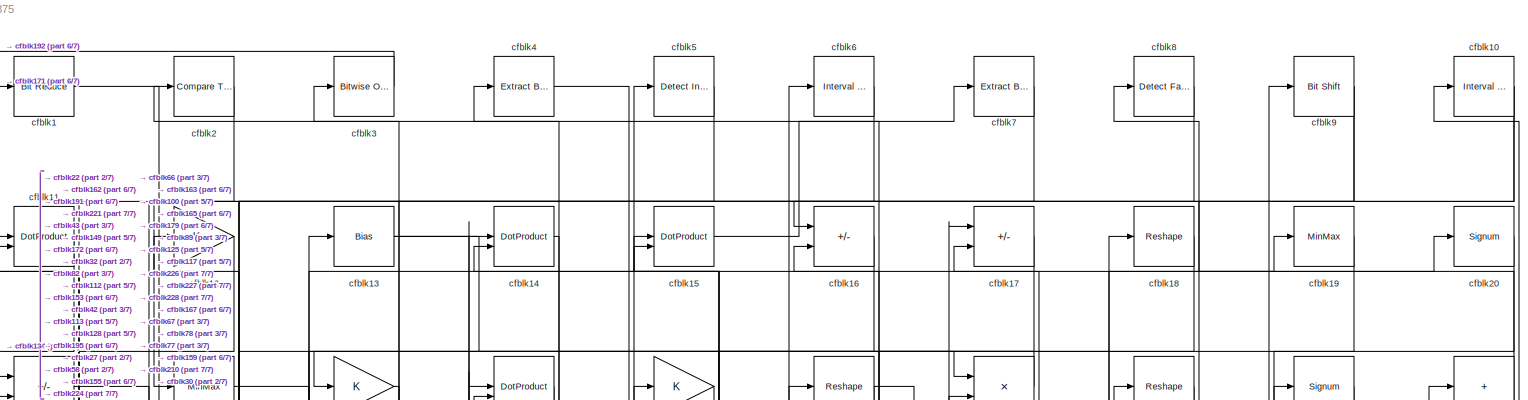
[diagram: root canvas - part 1/7, full width, top band]
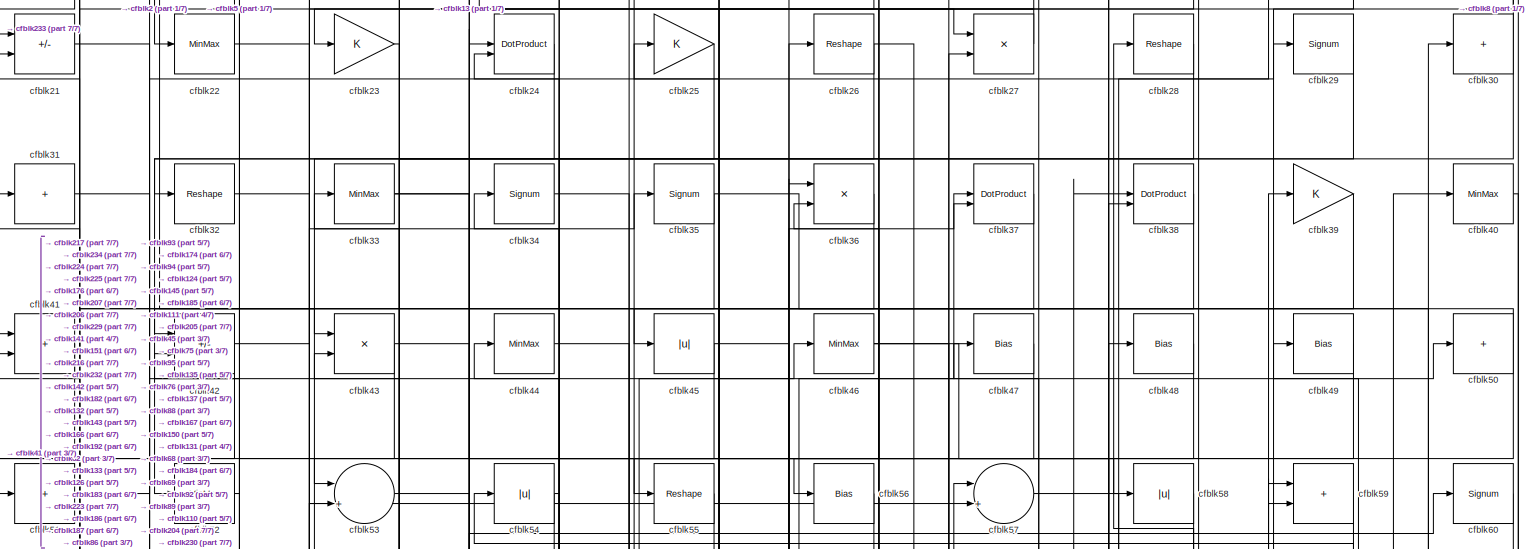
[diagram: root canvas - part 2/7, full width, top band]
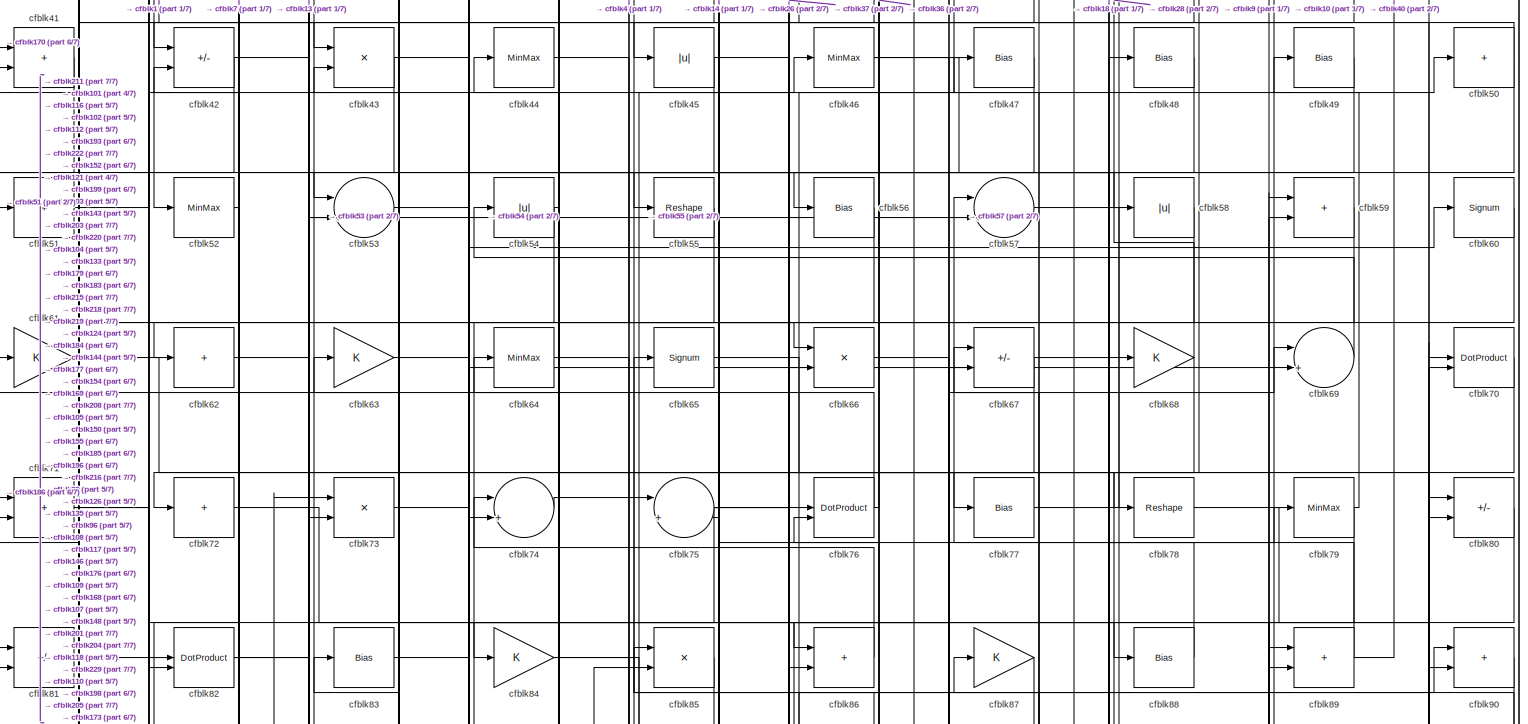
[diagram: root canvas - part 3/7, full width, top band]
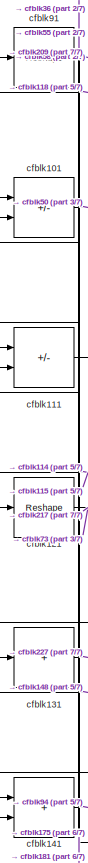
[diagram: root canvas - part 4/7, middle left region]
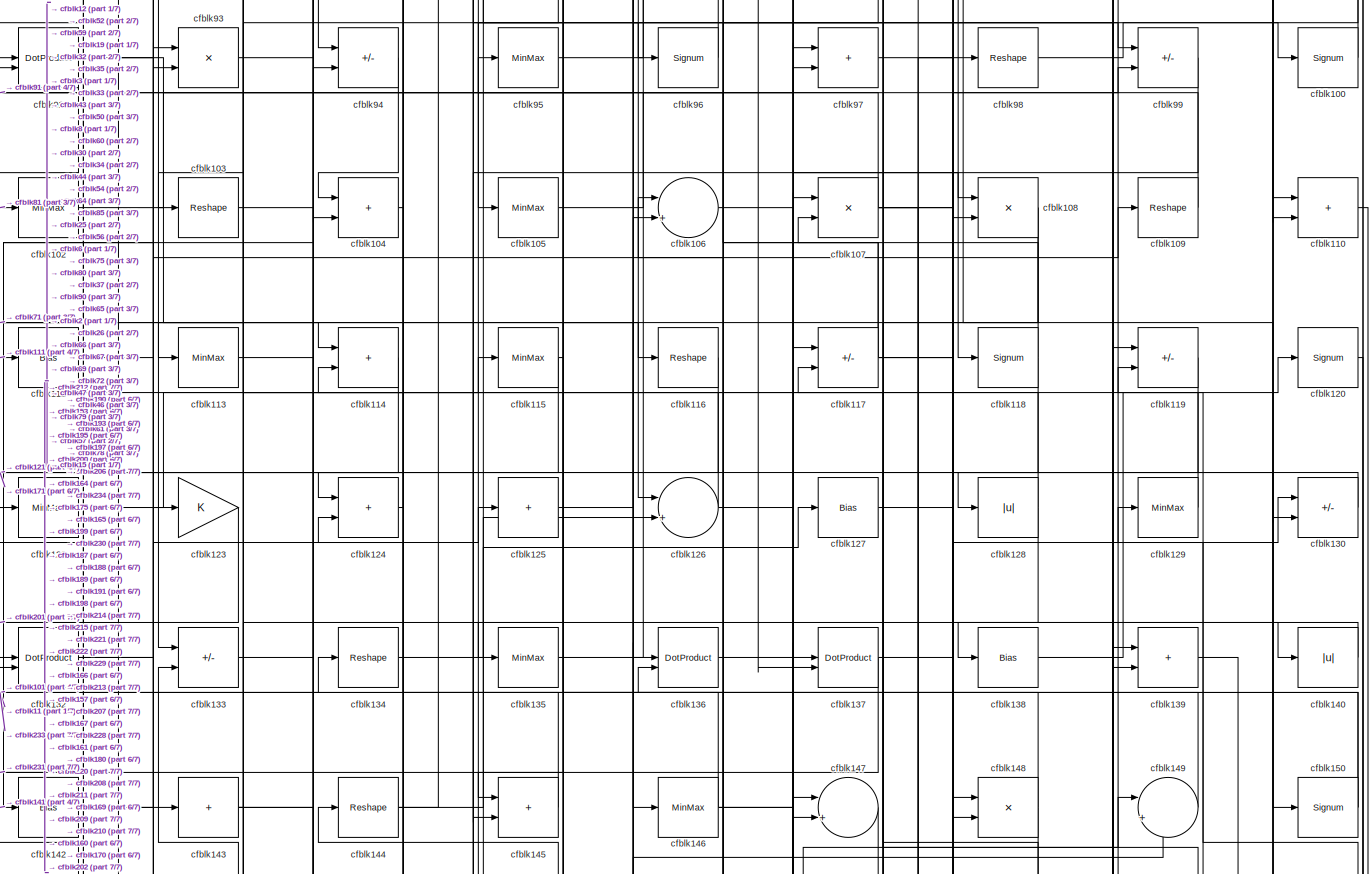
[diagram: root canvas - part 5/7, full width, middle band]
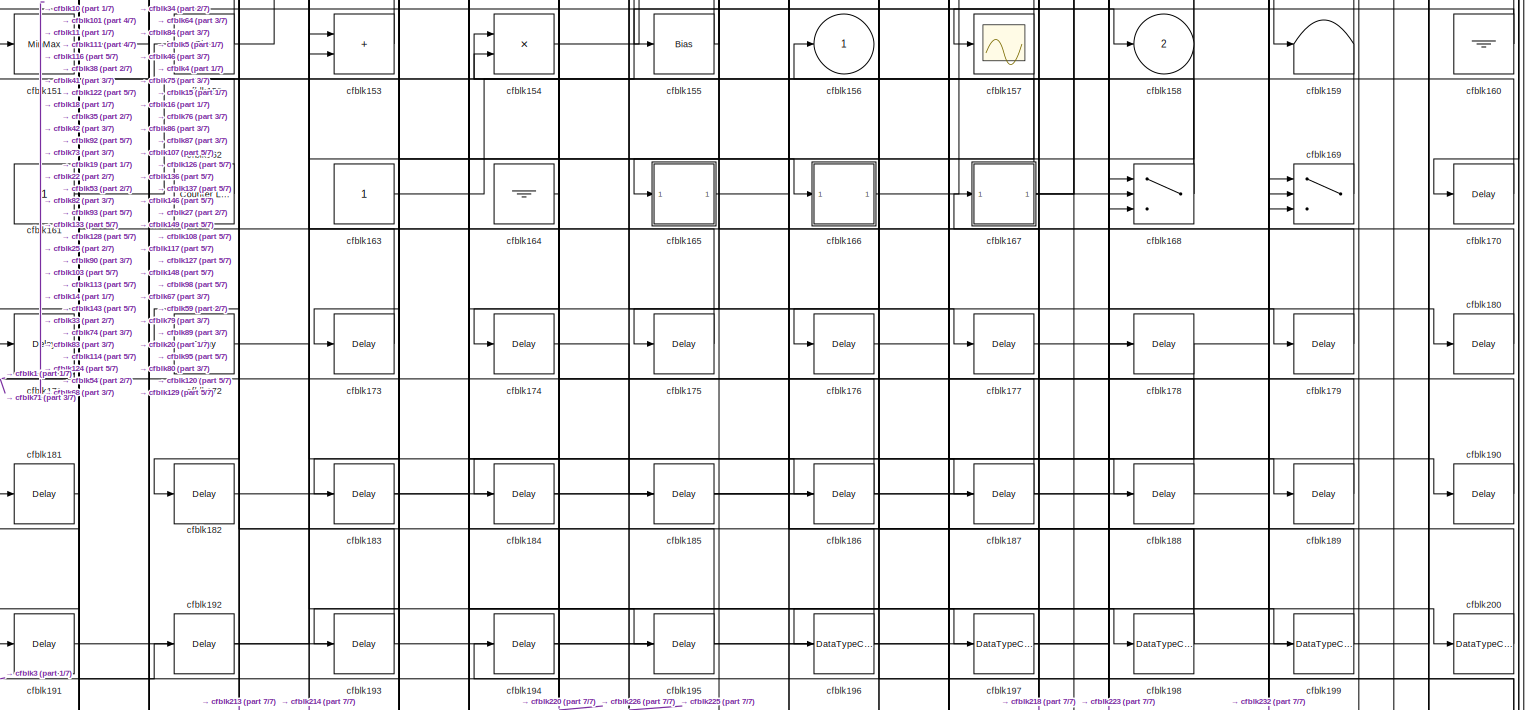
[diagram: root canvas - part 6/7, full width, bottom band]
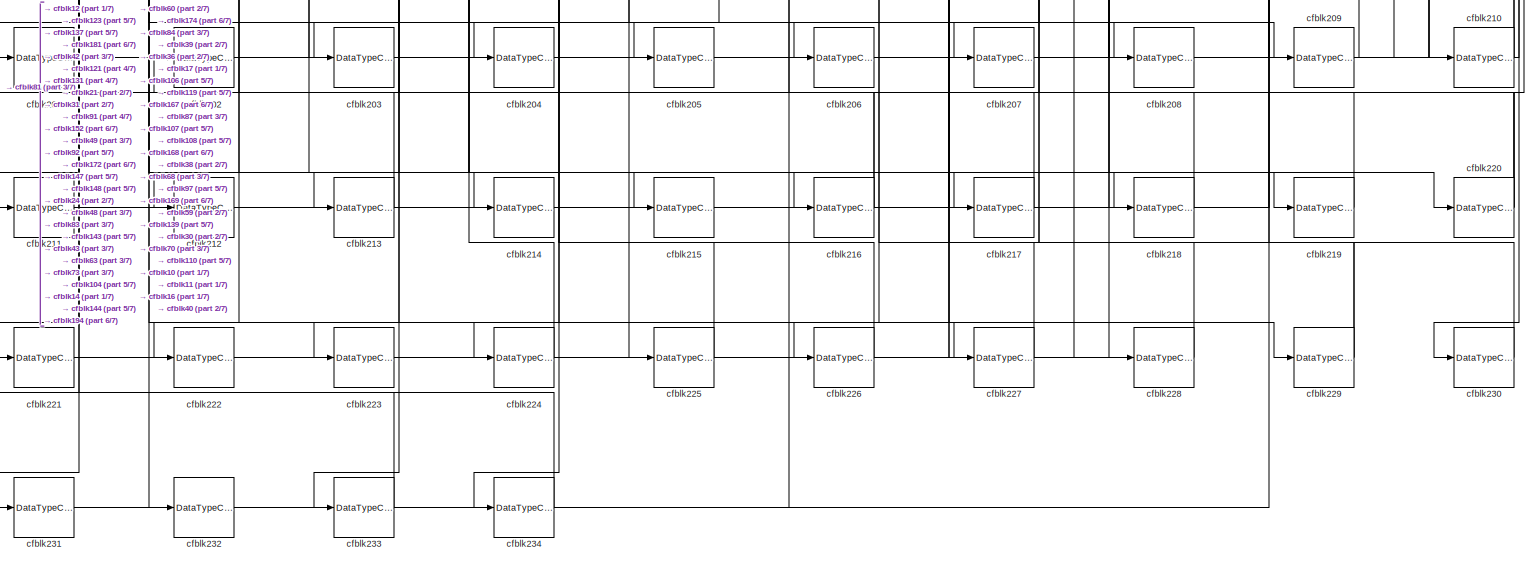
[diagram: root canvas - part 7/7, full width, bottom band]
MODEL slx_3ebe3eef9875
KIND model
CONFIG AbsTol = auto
CONFIG EnableMultiTasking = off
CONFIG FixedStep = auto
CONFIG MaxStep = auto
CONFIG MinStep = auto
CONFIG RelTol = 1e-3
CONFIG SampleTimeConstraint = Unconstrained
CONFIG SolverName = VariableStepAuto
CONFIG StartTime = 0.0
CONFIG StopTime = 10.0
BLOCK [Reference] cfblk1  REF=hdlsllib/Logic and Bit
Operations/Bit Reduce
  SourceBlock = hdlsllib/Logic and Bit\nOperations/Bit Reduce
  SourceType = Bit Reduce
BLOCK [Reference] cfblk10  REF=hdlsllib/Logic and Bit
Operations/Interval Test
  SourceBlock = hdlsllib/Logic and Bit\nOperations/Interval Test
  SourceType = Interval Test
BLOCK [Signum] cfblk100
BLOCK [Sum] cfblk101
  IconShape = rectangular
  Inputs = +-
BLOCK [MinMax] cfblk102
BLOCK [Reshape] cfblk103
BLOCK [Sum] cfblk104
  IconShape = rectangular
BLOCK [MinMax] cfblk105
BLOCK [Sum] cfblk106
  Inputs = |++
BLOCK [Product] cfblk107
  Inputs = */
  RndMeth = Zero
  SaturateOnIntegerOverflow = on
BLOCK [Product] cfblk108
  Inputs = */
  RndMeth = Zero
  SaturateOnIntegerOverflow = on
BLOCK [Reshape] cfblk109
BLOCK [DotProduct] cfblk11
  OutDataTypeStr = Inherit: Inherit via internal rule
BLOCK [Sum] cfblk110
  IconShape = rectangular
BLOCK [Sum] cfblk111
  IconShape = rectangular
  Inputs = +-
BLOCK [Bias] cfblk112
  Bias = 0.0
  SaturateOnIntegerOverflow = off
BLOCK [MinMax] cfblk113
BLOCK [Sum] cfblk114
  IconShape = rectangular
BLOCK [MinMax] cfblk115
BLOCK [Reshape] cfblk116
BLOCK [Sum] cfblk117
  IconShape = rectangular
  Inputs = +-
BLOCK [Signum] cfblk118
BLOCK [Sum] cfblk119
  IconShape = rectangular
  Inputs = +-
BLOCK [Gain] cfblk12
BLOCK [Signum] cfblk120
BLOCK [Reshape] cfblk121
BLOCK [MinMax] cfblk122
BLOCK [Gain] cfblk123
BLOCK [Sum] cfblk124
  IconShape = rectangular
BLOCK [Sum] cfblk125
  IconShape = rectangular
  Inputs = +
BLOCK [Sum] cfblk126
  Inputs = |++
BLOCK [Bias] cfblk127
  Bias = 0.0
  SaturateOnIntegerOverflow = off
BLOCK [Abs] cfblk128
  SaturateOnIntegerOverflow = off
BLOCK [MinMax] cfblk129
BLOCK [Bias] cfblk13
  Bias = 0.0
  SaturateOnIntegerOverflow = off
BLOCK [Sum] cfblk130
  IconShape = rectangular
  Inputs = +-
BLOCK [Sum] cfblk131
  IconShape = rectangular
  Inputs = +
BLOCK [DotProduct] cfblk132
  OutDataTypeStr = Inherit: Inherit via internal rule
BLOCK [Sum] cfblk133
  IconShape = rectangular
  Inputs = +-
BLOCK [Reshape] cfblk134
BLOCK [MinMax] cfblk135
BLOCK [DotProduct] cfblk136
  OutDataTypeStr = Inherit: Inherit via internal rule
BLOCK [DotProduct] cfblk137
  OutDataTypeStr = Inherit: Inherit via internal rule
BLOCK [Bias] cfblk138
  Bias = 0.0
  SaturateOnIntegerOverflow = off
BLOCK [Sum] cfblk139
  IconShape = rectangular
BLOCK [DotProduct] cfblk14
  OutDataTypeStr = Inherit: Inherit via internal rule
BLOCK [Abs] cfblk140
  SaturateOnIntegerOverflow = off
BLOCK [Sum] cfblk141
  IconShape = rectangular
BLOCK [Bias] cfblk142
  Bias = 0.0
  SaturateOnIntegerOverflow = off
BLOCK [Sum] cfblk143
  IconShape = rectangular
  Inputs = +
BLOCK [Reshape] cfblk144
BLOCK [Sum] cfblk145
  IconShape = rectangular
BLOCK [MinMax] cfblk146
BLOCK [Sum] cfblk147
  Inputs = |++
BLOCK [Product] cfblk148
  Inputs = */
  RndMeth = Zero
  SaturateOnIntegerOverflow = on
BLOCK [Sum] cfblk149
  Inputs = |++
BLOCK [DotProduct] cfblk15
  OutDataTypeStr = Inherit: Inherit via internal rule
BLOCK [Signum] cfblk150
BLOCK [MinMax] cfblk151
BLOCK [Bias] cfblk152
  Bias = 0.0
  SaturateOnIntegerOverflow = off
BLOCK [Sum] cfblk153
  IconShape = rectangular
BLOCK [Product] cfblk154
  Inputs = */
  RndMeth = Zero
  SaturateOnIntegerOverflow = on
BLOCK [Bias] cfblk155
  Bias = 0.0
  SaturateOnIntegerOverflow = off
BLOCK [Outport] cfblk156
  VectorParamsAs1DForOutWhenUnconnected = off
BLOCK [Scope] cfblk157
  Floating = off
  NumInputPorts = 1
  ScopeSpecificationString = Simulink.scopes.TimeScopeBlockCfg('CurrentConfiguration', extmgr.ConfigurationSet(extmgr.Configuration('Core','General UI',true),extmgr.Configuration('Core','Source UI',true),extmgr.Configuration('Sources','WiredSimulink',true,'DataLoggingVariableName','ScopeData2','DataLoggingSaveFormat','Array','DataLoggingLimitDataPoints',true,'DataLoggingDecimation','1'),extmgr.Configuration('Visuals','Time Do...<+868ch>
BLOCK [Outport] cfblk158
  Port = 2
  VectorParamsAs1DForOutWhenUnconnected = off
BLOCK [Terminator] cfblk159
BLOCK [Sum] cfblk16
  IconShape = rectangular
  Inputs = +-
BLOCK [Ground] cfblk160
BLOCK [Constant] cfblk161
  SampleTime = -1
BLOCK [Reference] cfblk162  REF=hdlsllib/Sources/Counter
Limited
  SourceBlock = hdlsllib/Sources/Counter\nLimited
  SourceType = Counter Limited
BLOCK [Constant] cfblk163
  SampleTime = -1
BLOCK [Ground] cfblk164
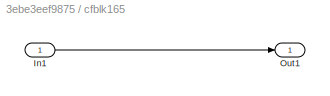
BLOCK [SubSystem] cfblk165
  LibrarySourceBlock = hdlsllib/Ports &\nSubsystems/Subsystem
BLOCK [Inport] cfblk165/In1
BLOCK [Outport] cfblk165/Out1
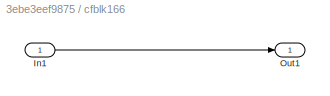
BLOCK [SubSystem] cfblk166
  LibrarySourceBlock = hdlsllib/Ports &\nSubsystems/Subsystem
BLOCK [Inport] cfblk166/In1
BLOCK [Outport] cfblk166/Out1
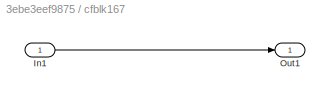
BLOCK [SubSystem] cfblk167
  LibrarySourceBlock = hdlsllib/Ports &\nSubsystems/Subsystem
BLOCK [Inport] cfblk167/In1
BLOCK [Outport] cfblk167/Out1
BLOCK [Switch] cfblk168
  InputSameDT = off
  SaturateOnIntegerOverflow = off
BLOCK [Switch] cfblk169
  InputSameDT = off
  SaturateOnIntegerOverflow = off
BLOCK [Sum] cfblk17
  IconShape = rectangular
  Inputs = +-
BLOCK [Delay] cfblk170
  InputPortMap = u0
  SampleTime = 1
BLOCK [Delay] cfblk171
  InputPortMap = u0
  SampleTime = 1
BLOCK [Delay] cfblk172
  InputPortMap = u0
  SampleTime = 1
BLOCK [Delay] cfblk173
  InputPortMap = u0
  SampleTime = 1
BLOCK [Delay] cfblk174
  InputPortMap = u0
  SampleTime = 1
BLOCK [Delay] cfblk175
  InputPortMap = u0
  SampleTime = 1
BLOCK [Delay] cfblk176
  InputPortMap = u0
  SampleTime = 1
BLOCK [Delay] cfblk177
  InputPortMap = u0
  SampleTime = 1
BLOCK [Delay] cfblk178
  InputPortMap = u0
  SampleTime = 1
BLOCK [Delay] cfblk179
  InputPortMap = u0
  SampleTime = 1
BLOCK [Reshape] cfblk18
BLOCK [Delay] cfblk180
  InputPortMap = u0
  SampleTime = 1
BLOCK [Delay] cfblk181
  InputPortMap = u0
  SampleTime = 1
BLOCK [Delay] cfblk182
  InputPortMap = u0
  SampleTime = 1
BLOCK [Delay] cfblk183
  InputPortMap = u0
  SampleTime = 1
BLOCK [Delay] cfblk184
  InputPortMap = u0
  SampleTime = 1
BLOCK [Delay] cfblk185
  InputPortMap = u0
  SampleTime = 1
BLOCK [Delay] cfblk186
  InputPortMap = u0
  SampleTime = 1
BLOCK [Delay] cfblk187
  InputPortMap = u0
  SampleTime = 1
BLOCK [Delay] cfblk188
  InputPortMap = u0
  SampleTime = 1
BLOCK [Delay] cfblk189
  InputPortMap = u0
  SampleTime = 1
BLOCK [MinMax] cfblk19
BLOCK [Delay] cfblk190
  InputPortMap = u0
  SampleTime = 1
BLOCK [Delay] cfblk191
  InputPortMap = u0
  SampleTime = 1
BLOCK [Delay] cfblk192
  InputPortMap = u0
  SampleTime = 1
BLOCK [Delay] cfblk193
  InputPortMap = u0
  SampleTime = 1
BLOCK [Delay] cfblk194
  InputPortMap = u0
  SampleTime = 1
BLOCK [Delay] cfblk195
  InputPortMap = u0
  SampleTime = 1
BLOCK [DataTypeConversion] cfblk196
  OutDataTypeStr = uint8
  RndMeth = Floor
  SaturateOnIntegerOverflow = off
BLOCK [DataTypeConversion] cfblk197
  OutDataTypeStr = uint8
  RndMeth = Floor
  SaturateOnIntegerOverflow = off
BLOCK [DataTypeConversion] cfblk198
  RndMeth = Floor
  SaturateOnIntegerOverflow = off
BLOCK [DataTypeConversion] cfblk199
  OutDataTypeStr = uint8
  RndMeth = Floor
  SaturateOnIntegerOverflow = off
BLOCK [Reference] cfblk2  REF=hdlsllib/Logic and Bit
Operations/Compare
To Zero
  SourceBlock = hdlsllib/Logic and Bit\nOperations/Compare\nTo Zero
  SourceType = Compare To Zero
BLOCK [Signum] cfblk20
BLOCK [DataTypeConversion] cfblk200
  OutDataTypeStr = uint8
  RndMeth = Floor
  SaturateOnIntegerOverflow = off
BLOCK [DataTypeConversion] cfblk201
  OutDataTypeStr = uint8
  RndMeth = Floor
  SaturateOnIntegerOverflow = off
BLOCK [DataTypeConversion] cfblk202
  OutDataTypeStr = uint8
  RndMeth = Floor
  SaturateOnIntegerOverflow = off
BLOCK [DataTypeConversion] cfblk203
  OutDataTypeStr = uint8
  RndMeth = Floor
  SaturateOnIntegerOverflow = off
BLOCK [DataTypeConversion] cfblk204
  OutDataTypeStr = uint8
  RndMeth = Floor
  SaturateOnIntegerOverflow = off
BLOCK [DataTypeConversion] cfblk205
  OutDataTypeStr = uint8
  RndMeth = Floor
  SaturateOnIntegerOverflow = off
BLOCK [DataTypeConversion] cfblk206
  OutDataTypeStr = uint8
  RndMeth = Floor
  SaturateOnIntegerOverflow = off
BLOCK [DataTypeConversion] cfblk207
  RndMeth = Floor
  SaturateOnIntegerOverflow = off
BLOCK [DataTypeConversion] cfblk208
  OutDataTypeStr = uint8
  RndMeth = Floor
  SaturateOnIntegerOverflow = off
BLOCK [DataTypeConversion] cfblk209
  OutDataTypeStr = uint8
  RndMeth = Floor
  SaturateOnIntegerOverflow = off
BLOCK [Sum] cfblk21
  IconShape = rectangular
  Inputs = +-
BLOCK [DataTypeConversion] cfblk210
  RndMeth = Floor
  SaturateOnIntegerOverflow = off
BLOCK [DataTypeConversion] cfblk211
  OutDataTypeStr = uint8
  RndMeth = Floor
  SaturateOnIntegerOverflow = off
BLOCK [DataTypeConversion] cfblk212
  OutDataTypeStr = uint8
  RndMeth = Floor
  SaturateOnIntegerOverflow = off
BLOCK [DataTypeConversion] cfblk213
  RndMeth = Floor
  SaturateOnIntegerOverflow = off
BLOCK [DataTypeConversion] cfblk214
  OutDataTypeStr = uint8
  RndMeth = Floor
  SaturateOnIntegerOverflow = off
BLOCK [DataTypeConversion] cfblk215
  OutDataTypeStr = uint8
  RndMeth = Floor
  SaturateOnIntegerOverflow = off
BLOCK [DataTypeConversion] cfblk216
  RndMeth = Floor
  SaturateOnIntegerOverflow = off
BLOCK [DataTypeConversion] cfblk217
  OutDataTypeStr = uint8
  RndMeth = Floor
  SaturateOnIntegerOverflow = off
BLOCK [DataTypeConversion] cfblk218
  OutDataTypeStr = uint8
  RndMeth = Floor
  SaturateOnIntegerOverflow = off
BLOCK [DataTypeConversion] cfblk219
  OutDataTypeStr = uint8
  RndMeth = Floor
  SaturateOnIntegerOverflow = off
BLOCK [MinMax] cfblk22
BLOCK [DataTypeConversion] cfblk220
  RndMeth = Floor
  SaturateOnIntegerOverflow = off
BLOCK [DataTypeConversion] cfblk221
  OutDataTypeStr = uint8
  RndMeth = Floor
  SaturateOnIntegerOverflow = off
BLOCK [DataTypeConversion] cfblk222
  OutDataTypeStr = uint8
  RndMeth = Floor
  SaturateOnIntegerOverflow = off
BLOCK [DataTypeConversion] cfblk223
  OutDataTypeStr = uint8
  RndMeth = Floor
  SaturateOnIntegerOverflow = off
BLOCK [DataTypeConversion] cfblk224
  OutDataTypeStr = uint8
  RndMeth = Floor
  SaturateOnIntegerOverflow = off
BLOCK [DataTypeConversion] cfblk225
  OutDataTypeStr = uint8
  RndMeth = Floor
  SaturateOnIntegerOverflow = off
BLOCK [DataTypeConversion] cfblk226
  OutDataTypeStr = uint8
  RndMeth = Floor
  SaturateOnIntegerOverflow = off
BLOCK [DataTypeConversion] cfblk227
  OutDataTypeStr = uint8
  RndMeth = Floor
  SaturateOnIntegerOverflow = off
BLOCK [DataTypeConversion] cfblk228
  OutDataTypeStr = uint8
  RndMeth = Floor
  SaturateOnIntegerOverflow = off
BLOCK [DataTypeConversion] cfblk229
  RndMeth = Floor
  SaturateOnIntegerOverflow = off
BLOCK [Gain] cfblk23
BLOCK [DataTypeConversion] cfblk230
  OutDataTypeStr = uint8
  RndMeth = Floor
  SaturateOnIntegerOverflow = off
BLOCK [DataTypeConversion] cfblk231
  OutDataTypeStr = uint8
  RndMeth = Floor
  SaturateOnIntegerOverflow = off
BLOCK [DataTypeConversion] cfblk232
  OutDataTypeStr = uint8
  RndMeth = Floor
  SaturateOnIntegerOverflow = off
BLOCK [DataTypeConversion] cfblk233
  OutDataTypeStr = uint8
  RndMeth = Floor
  SaturateOnIntegerOverflow = off
BLOCK [DataTypeConversion] cfblk234
  OutDataTypeStr = uint8
  RndMeth = Floor
  SaturateOnIntegerOverflow = off
BLOCK [DotProduct] cfblk24
  OutDataTypeStr = Inherit: Inherit via internal rule
BLOCK [Gain] cfblk25
BLOCK [Reshape] cfblk26
BLOCK [Product] cfblk27
  Inputs = */
  RndMeth = Zero
  SaturateOnIntegerOverflow = on
BLOCK [Reshape] cfblk28
BLOCK [Signum] cfblk29
BLOCK [Reference] cfblk3  REF=simulink/Logic and Bit
Operations/Bitwise
Operator
  LibrarySourceBlock = hdlsllib/Logic and Bit\nOperations/Bitwise\nOperator
  SourceBlock = simulink/Logic and Bit\nOperations/Bitwise\nOperator
  SourceType = Bitwise Operator
BLOCK [Sum] cfblk30
  IconShape = rectangular
  Inputs = +
BLOCK [Sum] cfblk31
  IconShape = rectangular
  Inputs = +
BLOCK [Reshape] cfblk32
BLOCK [MinMax] cfblk33
BLOCK [Signum] cfblk34
BLOCK [Signum] cfblk35
BLOCK [Product] cfblk36
  Inputs = */
  RndMeth = Zero
  SaturateOnIntegerOverflow = on
BLOCK [DotProduct] cfblk37
  OutDataTypeStr = Inherit: Inherit via internal rule
BLOCK [DotProduct] cfblk38
  OutDataTypeStr = Inherit: Inherit via internal rule
BLOCK [Gain] cfblk39
BLOCK [Reference] cfblk4  REF=simulink/Logic and Bit
Operations/Extract Bits
  LibrarySourceBlock = hdlsllib/Logic and Bit\nOperations/Extract Bits
  SourceBlock = simulink/Logic and Bit\nOperations/Extract Bits
  SourceType = Extract Bits
BLOCK [MinMax] cfblk40
BLOCK [Sum] cfblk41
  IconShape = rectangular
BLOCK [Sum] cfblk42
  IconShape = rectangular
  Inputs = +-
BLOCK [Product] cfblk43
  Inputs = */
  RndMeth = Zero
  SaturateOnIntegerOverflow = on
BLOCK [MinMax] cfblk44
BLOCK [Abs] cfblk45
  SaturateOnIntegerOverflow = off
BLOCK [MinMax] cfblk46
BLOCK [Bias] cfblk47
  Bias = 0.0
  SaturateOnIntegerOverflow = off
BLOCK [Bias] cfblk48
  Bias = 0.0
  SaturateOnIntegerOverflow = off
BLOCK [Bias] cfblk49
  Bias = 0.0
  SaturateOnIntegerOverflow = off
BLOCK [Reference] cfblk5  REF=simulink/Logic and Bit
Operations/Detect
Increase
  LibrarySourceBlock = hdlsllib/Logic and Bit\nOperations/Detect\nIncrease
  SourceBlock = simulink/Logic and Bit\nOperations/Detect\nIncrease
  SourceType = Detect Increase
BLOCK [Sum] cfblk50
  IconShape = rectangular
  Inputs = +
BLOCK [Sum] cfblk51
  IconShape = rectangular
  Inputs = +
BLOCK [MinMax] cfblk52
BLOCK [Sum] cfblk53
  Inputs = |++
BLOCK [Abs] cfblk54
  SaturateOnIntegerOverflow = off
BLOCK [Reshape] cfblk55
BLOCK [Bias] cfblk56
  Bias = 0.0
  SaturateOnIntegerOverflow = off
BLOCK [Sum] cfblk57
  Inputs = |++
BLOCK [Abs] cfblk58
  SaturateOnIntegerOverflow = off
BLOCK [Sum] cfblk59
  IconShape = rectangular
BLOCK [Reference] cfblk6  REF=hdlsllib/Logic and Bit
Operations/Interval Test
  SourceBlock = hdlsllib/Logic and Bit\nOperations/Interval Test
  SourceType = Interval Test
BLOCK [Signum] cfblk60
BLOCK [Gain] cfblk61
BLOCK [Sum] cfblk62
  IconShape = rectangular
  Inputs = +
BLOCK [Gain] cfblk63
BLOCK [MinMax] cfblk64
BLOCK [Signum] cfblk65
BLOCK [Product] cfblk66
  Inputs = */
  RndMeth = Zero
  SaturateOnIntegerOverflow = on
BLOCK [Sum] cfblk67
  IconShape = rectangular
  Inputs = +-
BLOCK [Gain] cfblk68
BLOCK [Sum] cfblk69
  Inputs = |++
BLOCK [Reference] cfblk7  REF=simulink/Logic and Bit
Operations/Extract Bits
  LibrarySourceBlock = hdlsllib/Logic and Bit\nOperations/Extract Bits
  SourceBlock = simulink/Logic and Bit\nOperations/Extract Bits
  SourceType = Extract Bits
BLOCK [DotProduct] cfblk70
  OutDataTypeStr = Inherit: Inherit via internal rule
BLOCK [Sum] cfblk71
  IconShape = rectangular
BLOCK [Sum] cfblk72
  IconShape = rectangular
  Inputs = +
BLOCK [Product] cfblk73
  Inputs = */
  RndMeth = Zero
  SaturateOnIntegerOverflow = on
BLOCK [Sum] cfblk74
  Inputs = |++
BLOCK [Sum] cfblk75
  Inputs = |++
BLOCK [DotProduct] cfblk76
  OutDataTypeStr = Inherit: Inherit via internal rule
BLOCK [Bias] cfblk77
  Bias = 0.0
  SaturateOnIntegerOverflow = off
BLOCK [Reshape] cfblk78
BLOCK [MinMax] cfblk79
BLOCK [Reference] cfblk8  REF=hdlsllib/Logic and Bit
Operations/Detect Fall
Negative
  SourceBlock = hdlsllib/Logic and Bit\nOperations/Detect Fall\nNegative
  SourceType = Detect Fall Negative
BLOCK [Sum] cfblk80
  IconShape = rectangular
  Inputs = +-
BLOCK [Sum] cfblk81
  IconShape = rectangular
  Inputs = +-
BLOCK [DotProduct] cfblk82
  OutDataTypeStr = Inherit: Inherit via internal rule
BLOCK [Bias] cfblk83
  Bias = 0.0
  SaturateOnIntegerOverflow = off
BLOCK [Gain] cfblk84
BLOCK [Product] cfblk85
  Inputs = */
  RndMeth = Zero
  SaturateOnIntegerOverflow = on
BLOCK [Sum] cfblk86
  IconShape = rectangular
BLOCK [Gain] cfblk87
BLOCK [Bias] cfblk88
  Bias = 0.0
  SaturateOnIntegerOverflow = off
BLOCK [Sum] cfblk89
  IconShape = rectangular
BLOCK [Reference] cfblk9  REF=hdlsllib/Logic and Bit
Operations/Bit Shift
  SourceBlock = hdlsllib/Logic and Bit\nOperations/Bit Shift
  SourceType = Bit Shift
BLOCK [Sum] cfblk90
  IconShape = rectangular
BLOCK [Reshape] cfblk91
BLOCK [DotProduct] cfblk92
  OutDataTypeStr = Inherit: Inherit via internal rule
BLOCK [Product] cfblk93
  Inputs = */
  RndMeth = Zero
  SaturateOnIntegerOverflow = on
BLOCK [Sum] cfblk94
  IconShape = rectangular
  Inputs = +-
BLOCK [MinMax] cfblk95
BLOCK [Signum] cfblk96
BLOCK [Sum] cfblk97
  IconShape = rectangular
BLOCK [Reshape] cfblk98
BLOCK [Sum] cfblk99
  IconShape = rectangular
  Inputs = +-
LINE cfblk100:1 -> cfblk15:1
LINE cfblk101:1 -> cfblk50:1
LINE cfblk102:1 -> cfblk66:2
LINE cfblk103:1 -> cfblk195:1
LINE cfblk104:1 -> cfblk234:1
LINE cfblk105:1 -> cfblk67:2
LINE cfblk106:1 -> cfblk229:1
NET cfblk107:1 -> cfblk130:2, cfblk228:1, cfblk71:2, cfblk79:1
NET cfblk108:1 -> cfblk157:1, cfblk175:1
LINE cfblk109:1 -> cfblk47:1
NET cfblk10:1 -> cfblk191:1, cfblk78:1
LINE cfblk110:1 -> cfblk202:1
LINE cfblk111:1 -> cfblk114:1
LINE cfblk112:1 -> cfblk19:1
LINE cfblk113:1 -> cfblk197:1
LINE cfblk114:1 -> cfblk121:1
NET cfblk115:1 -> cfblk141:2, cfblk145:1
LINE cfblk116:1 -> cfblk171:1
NET cfblk117:1 -> cfblk107:2, cfblk140:1, cfblk2:1, cfblk99:2
NET cfblk118:1 -> cfblk132:1, cfblk91:1
LINE cfblk119:1 -> cfblk207:1
LINE cfblk11:1 -> cfblk134:1
LINE cfblk120:1 -> cfblk170:1
NET cfblk121:1 -> cfblk217:1, cfblk73:2
LINE cfblk122:1 -> cfblk115:1
LINE cfblk123:1 -> cfblk201:1
LINE cfblk124:1 -> cfblk64:1
LINE cfblk125:1 -> cfblk6:1
NET cfblk126:1 -> cfblk188:1, cfblk33:1
LINE cfblk127:1 -> cfblk180:1
NET cfblk128:1 -> cfblk193:1, cfblk3:1
LINE cfblk129:1 -> cfblk92:2
LINE cfblk12:1 -> cfblk221:1
LINE cfblk130:1 -> cfblk128:1
LINE cfblk131:1 -> cfblk227:1
NET cfblk132:1 -> cfblk125:1, cfblk35:1
LINE cfblk133:1 -> cfblk69:2
LINE cfblk134:1 -> cfblk126:2
LINE cfblk135:1 -> cfblk90:1
LINE cfblk136:1 -> cfblk198:1
NET cfblk137:1 -> cfblk130:1, cfblk231:1
LINE cfblk138:1 -> cfblk120:1
LINE cfblk139:1 -> cfblk210:1
NET cfblk13:1 -> cfblk27:1, cfblk58:1
LINE cfblk140:1 -> cfblk138:1
LINE cfblk141:1 -> cfblk94:2
NET cfblk142:1 -> cfblk109:1, cfblk93:2
NET cfblk143:1 -> cfblk200:1, cfblk206:1, cfblk43:2
NET cfblk144:1 -> cfblk127:1, cfblk85:2
LINE cfblk145:1 -> cfblk34:1
NET cfblk146:1 -> cfblk189:1, cfblk44:1, cfblk69:1
LINE cfblk147:1 -> cfblk213:1
NET cfblk148:1 -> cfblk101:1, cfblk233:1
LINE cfblk149:1 -> cfblk12:1
LINE cfblk14:1 -> cfblk224:1
NET cfblk150:1 -> cfblk25:1, cfblk85:1
LINE cfblk151:1 -> cfblk158:1
NET cfblk152:1 -> cfblk41:2, cfblk73:1
LINE cfblk153:1 -> cfblk133:2
LINE cfblk154:1 -> cfblk46:1
NET cfblk155:1 -> cfblk4:1, cfblk75:2
LINE cfblk15:1 -> cfblk7:1
NET cfblk160:1 -> cfblk129:1, cfblk155:1
LINE cfblk161:1 -> cfblk148:1
LINE cfblk162:1 -> cfblk11:1
LINE cfblk163:1 -> cfblk5:1
LINE cfblk164:1 -> cfblk124:2
LINE cfblk165/In1:1 -> cfblk165/Out1:1
LINE cfblk165:1 -> cfblk149:2
LINE cfblk166/In1:1 -> cfblk166/Out1:1
LINE cfblk166:1 -> cfblk149:1
LINE cfblk167/In1:1 -> cfblk167/Out1:1
NET cfblk167:1 -> cfblk156:1, cfblk20:1, cfblk38:1, cfblk98:1
NET cfblk168:1 -> cfblk154:1, cfblk67:1
LINE cfblk169:1 -> cfblk95:1
LINE cfblk16:1 -> cfblk165:1
LINE cfblk170:1 -> cfblk41:1
LINE cfblk171:1 -> cfblk1:1
LINE cfblk172:1 -> cfblk214:1
LINE cfblk173:1 -> cfblk153:1
LINE cfblk174:1 -> cfblk225:1
LINE cfblk175:1 -> cfblk111:2
LINE cfblk176:1 -> cfblk27:2
LINE cfblk177:1 -> cfblk89:1
LINE cfblk178:1 -> cfblk196:1
LINE cfblk179:1 -> cfblk15:2
LINE cfblk17:1 -> cfblk226:1
LINE cfblk180:1 -> cfblk93:1
LINE cfblk181:1 -> cfblk101:2
LINE cfblk182:1 -> cfblk168:2
LINE cfblk183:1 -> cfblk74:2
LINE cfblk184:1 -> cfblk59:2
LINE cfblk185:1 -> cfblk86:2
LINE cfblk186:1 -> cfblk71:1
LINE cfblk187:1 -> cfblk137:1
LINE cfblk188:1 -> cfblk154:2
LINE cfblk189:1 -> cfblk117:2
LINE cfblk18:1 -> cfblk172:1
LINE cfblk190:1 -> cfblk114:2
LINE cfblk191:1 -> cfblk107:1
LINE cfblk192:1 -> cfblk53:2
LINE cfblk193:1 -> cfblk42:2
LINE cfblk194:1 -> cfblk168:1
LINE cfblk195:1 -> cfblk14:1
LINE cfblk196:1 -> cfblk76:1
LINE cfblk197:1 -> cfblk178:1
NET cfblk198:1 -> cfblk122:1, cfblk76:2, cfblk80:1
LINE cfblk199:1 -> cfblk136:1
LINE cfblk19:1 -> cfblk153:2
LINE cfblk1:1 -> cfblk43:1
LINE cfblk200:1 -> cfblk136:2
LINE cfblk201:1 -> cfblk68:1
LINE cfblk202:1 -> cfblk123:1
LINE cfblk203:1 -> cfblk70:2
LINE cfblk204:1 -> cfblk48:1
LINE cfblk205:1 -> cfblk70:1
LINE cfblk206:1 -> cfblk39:1
NET cfblk207:1 -> cfblk30:1, cfblk38:2
LINE cfblk208:1 -> cfblk119:1
LINE cfblk209:1 -> cfblk119:2
LINE cfblk20:1 -> cfblk159:1
NET cfblk210:1 -> cfblk10:1, cfblk11:2, cfblk16:2
LINE cfblk211:1 -> cfblk139:1
LINE cfblk212:1 -> cfblk139:2
NET cfblk213:1 -> cfblk108:2, cfblk152:1
LINE cfblk214:1 -> cfblk147:1
LINE cfblk215:1 -> cfblk147:2
NET cfblk216:1 -> cfblk36:1, cfblk81:1
LINE cfblk217:1 -> cfblk31:1
LINE cfblk218:1 -> cfblk167:1
LINE cfblk219:1 -> cfblk63:1
LINE cfblk21:1 -> cfblk232:1
NET cfblk220:1 -> cfblk144:1, cfblk181:1, cfblk83:1
LINE cfblk221:1 -> cfblk97:1
LINE cfblk222:1 -> cfblk97:2
LINE cfblk223:1 -> cfblk168:3
LINE cfblk224:1 -> cfblk24:1
LINE cfblk225:1 -> cfblk24:2
LINE cfblk226:1 -> cfblk194:1
LINE cfblk227:1 -> cfblk17:1
LINE cfblk228:1 -> cfblk17:2
NET cfblk229:1 -> cfblk59:1, cfblk87:1
LINE cfblk22:1 -> cfblk166:1
LINE cfblk230:1 -> cfblk106:1
LINE cfblk231:1 -> cfblk106:2
LINE cfblk232:1 -> cfblk169:1
LINE cfblk233:1 -> cfblk21:1
LINE cfblk234:1 -> cfblk21:2
LINE cfblk23:1 -> cfblk53:1
LINE cfblk24:1 -> cfblk223:1
LINE cfblk25:1 -> cfblk183:1
NET cfblk26:1 -> cfblk133:1, cfblk137:2
LINE cfblk27:1 -> cfblk23:1
LINE cfblk28:1 -> cfblk62:1
LINE cfblk29:1 -> cfblk52:1
LINE cfblk2:1 -> cfblk22:1
NET cfblk30:1 -> cfblk124:1, cfblk8:1
LINE cfblk31:1 -> cfblk216:1
LINE cfblk32:1 -> cfblk143:1
NET cfblk33:1 -> cfblk186:1, cfblk187:1
LINE cfblk34:1 -> cfblk185:1
NET cfblk35:1 -> cfblk110:2, cfblk182:1
LINE cfblk36:1 -> cfblk141:1
LINE cfblk37:1 -> cfblk56:1
LINE cfblk38:1 -> cfblk151:1
LINE cfblk39:1 -> cfblk205:1
LINE cfblk3:1 -> cfblk192:1
LINE cfblk40:1 -> cfblk230:1
LINE cfblk41:1 -> cfblk51:1
NET cfblk42:1 -> cfblk13:1, cfblk211:1
NET cfblk43:1 -> cfblk215:1, cfblk81:2
LINE cfblk44:1 -> cfblk96:1
NET cfblk45:1 -> cfblk55:1, cfblk90:2
NET cfblk46:1 -> cfblk148:2, cfblk80:2
LINE cfblk47:1 -> cfblk84:1
LINE cfblk48:1 -> cfblk203:1
LINE cfblk49:1 -> cfblk222:1
LINE cfblk4:1 -> cfblk66:1
NET cfblk50:1 -> cfblk103:1, cfblk45:1
LINE cfblk51:1 -> cfblk29:1
LINE cfblk52:1 -> cfblk142:1
LINE cfblk53:1 -> cfblk86:1
NET cfblk54:1 -> cfblk174:1, cfblk94:1
LINE cfblk55:1 -> cfblk111:1
LINE cfblk56:1 -> cfblk135:1
LINE cfblk57:1 -> cfblk150:1
LINE cfblk58:1 -> cfblk131:1
LINE cfblk59:1 -> cfblk92:1
LINE cfblk5:1 -> cfblk32:1
LINE cfblk60:1 -> cfblk204:1
LINE cfblk61:1 -> cfblk118:1
LINE cfblk62:1 -> cfblk57:2
LINE cfblk63:1 -> cfblk218:1
LINE cfblk64:1 -> cfblk177:1
LINE cfblk65:1 -> cfblk77:1
LINE cfblk66:1 -> cfblk108:1
NET cfblk67:1 -> cfblk112:1, cfblk18:1
NET cfblk68:1 -> cfblk184:1, cfblk28:1
LINE cfblk69:1 -> cfblk54:1
LINE cfblk6:1 -> cfblk16:1
LINE cfblk70:1 -> cfblk72:1
NET cfblk71:1 -> cfblk116:1, cfblk89:2
LINE cfblk72:1 -> cfblk117:1
LINE cfblk73:1 -> cfblk219:1
LINE cfblk74:1 -> cfblk75:1
NET cfblk75:1 -> cfblk104:2, cfblk26:1, cfblk37:2, cfblk99:1
NET cfblk76:1 -> cfblk36:2, cfblk61:1
LINE cfblk77:1 -> cfblk9:1
LINE cfblk78:1 -> cfblk110:1
NET cfblk79:1 -> cfblk169:2, cfblk49:1
LINE cfblk7:1 -> cfblk42:1
LINE cfblk80:1 -> cfblk126:1
LINE cfblk81:1 -> cfblk102:1
NET cfblk82:1 -> cfblk199:1, cfblk88:1
LINE cfblk83:1 -> cfblk179:1
NET cfblk84:1 -> cfblk169:3, cfblk208:1
LINE cfblk85:1 -> cfblk105:1
LINE cfblk86:1 -> cfblk74:1
LINE cfblk87:1 -> cfblk176:1
LINE cfblk88:1 -> cfblk57:1
NET cfblk89:1 -> cfblk14:2, cfblk40:1
LINE cfblk8:1 -> cfblk113:1
LINE cfblk90:1 -> cfblk173:1
LINE cfblk91:1 -> cfblk209:1
NET cfblk92:1 -> cfblk132:2, cfblk146:1, cfblk190:1, cfblk212:1
LINE cfblk93:1 -> cfblk60:1
LINE cfblk94:1 -> cfblk104:1
LINE cfblk95:1 -> cfblk37:1
LINE cfblk96:1 -> cfblk65:1
LINE cfblk97:1 -> cfblk220:1
LINE cfblk98:1 -> cfblk100:1
LINE cfblk99:1 -> cfblk145:2
NET cfblk9:1 -> cfblk82:1, cfblk82:2
note: NET lines group one-source signal fan-out (src -> all destinations, sorted); 1:1 wires keep LINE
